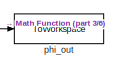
[diagram: root canvas - part 1/6, top left region]
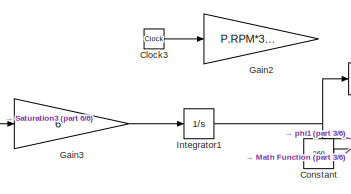
[diagram: root canvas - part 2/6, top left region]
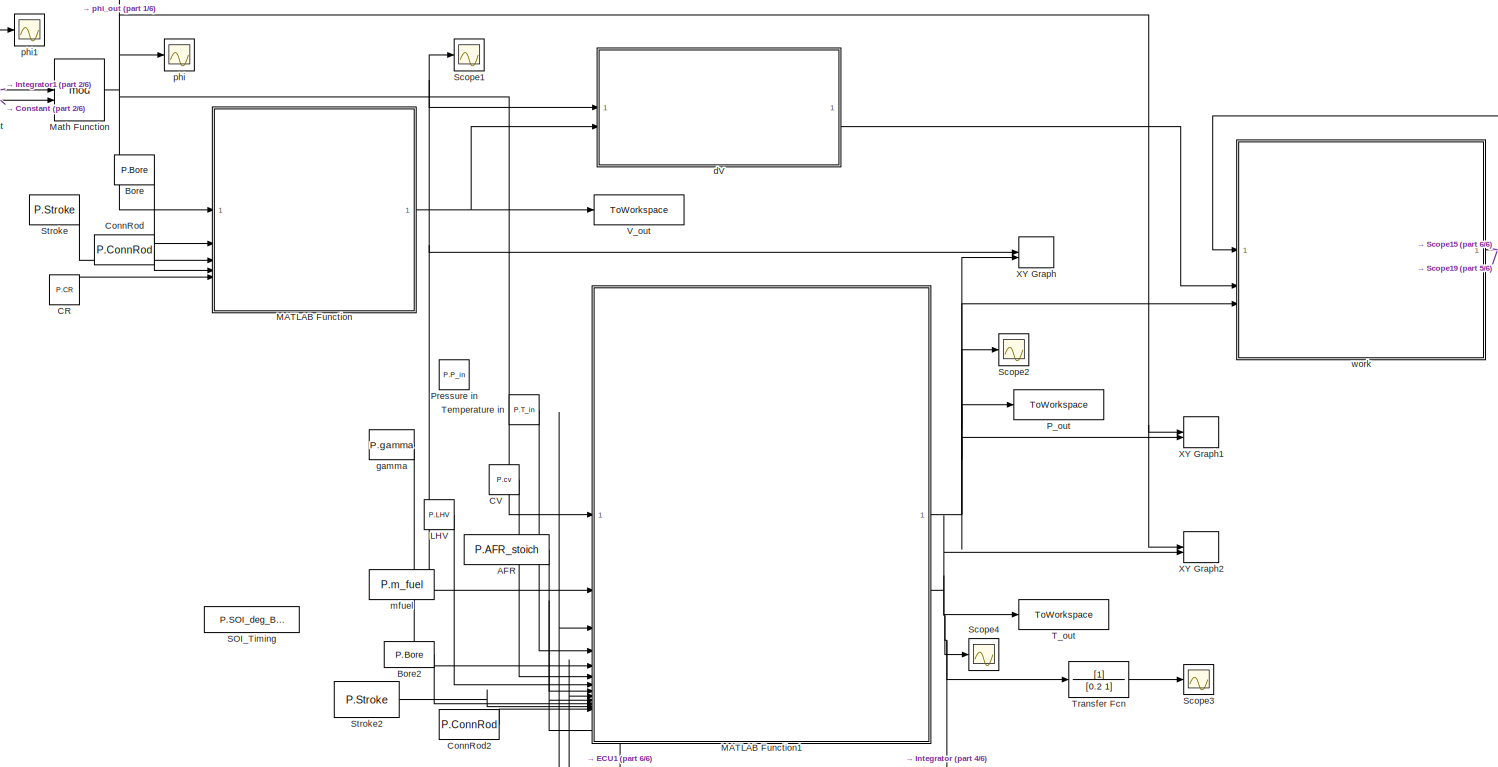
[diagram: root canvas - part 3/6, top center region]
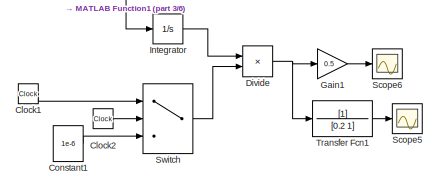
[diagram: root canvas - part 4/6, middle right region]
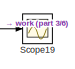
[diagram: root canvas - part 5/6, middle right region]
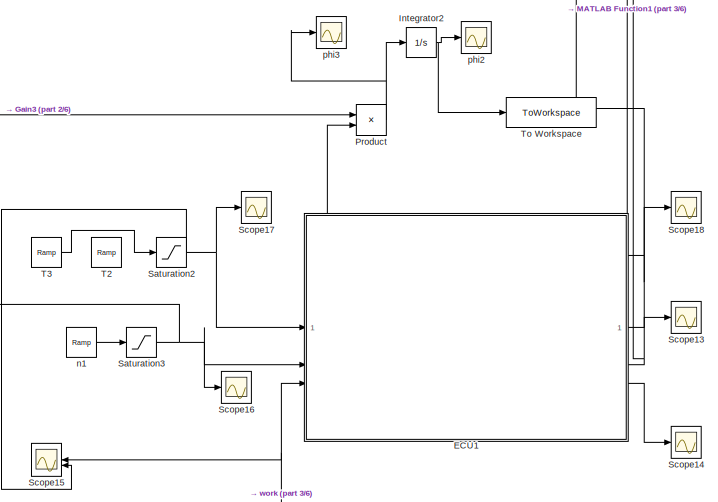
[diagram: root canvas - part 6/6, bottom center region]
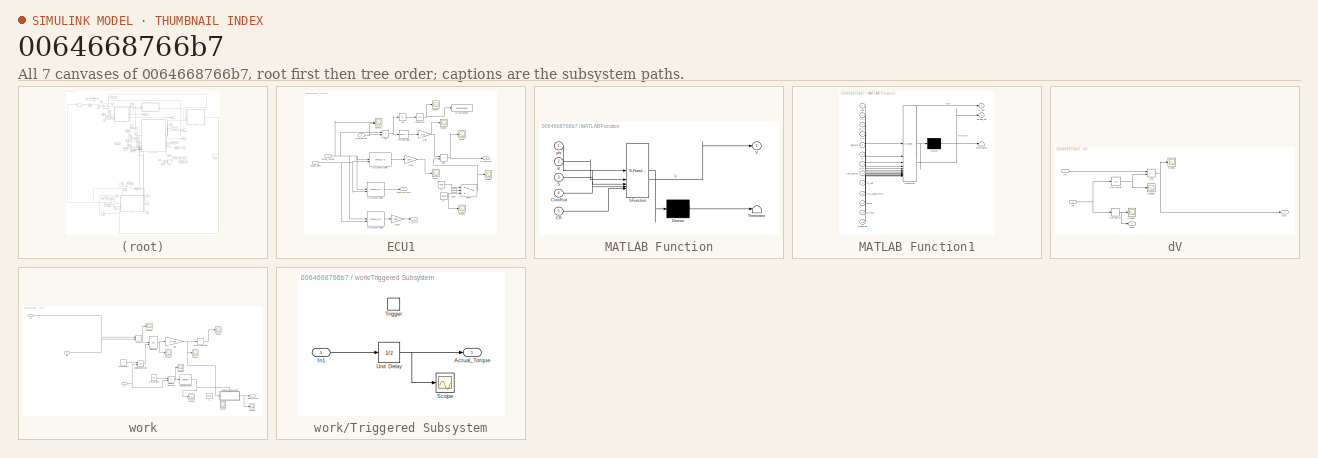
[diagram: thumbnail index - all 7 canvases of the model, root first then tree order]
MODEL slx_0064668766b7
KIND model
CONFIG AbsTol = auto
CONFIG EnableMultiTasking = off
CONFIG FixedStep = 1e-4
CONFIG MaxStep = auto
CONFIG MinStep = auto
CONFIG RelTol = 1e-3
CONFIG SampleTimeConstraint = Unconstrained
CONFIG SolverName = ode4
CONFIG StartTime = 0.0
CONFIG StopTime = 10
BLOCK [Constant] AFR
  Value = P.AFR_stoich
BLOCK [Constant] Bore
  Value = P.Bore
BLOCK [Constant] Bore2
  Value = P.Bore
BLOCK [Constant] CR
  Value = P.CR
BLOCK [Constant] CV
  Value = P.cv
BLOCK [Clock] Clock1
BLOCK [Clock] Clock2
BLOCK [Clock] Clock3
BLOCK [Constant] ConnRod
  Value = P.ConnRod
BLOCK [Constant] ConnRod2
  Value = P.ConnRod
BLOCK [Constant] Constant
  Value = 360
BLOCK [Constant] Constant1
  Value = 1e-6
BLOCK [Product] Divide
  Inputs = */
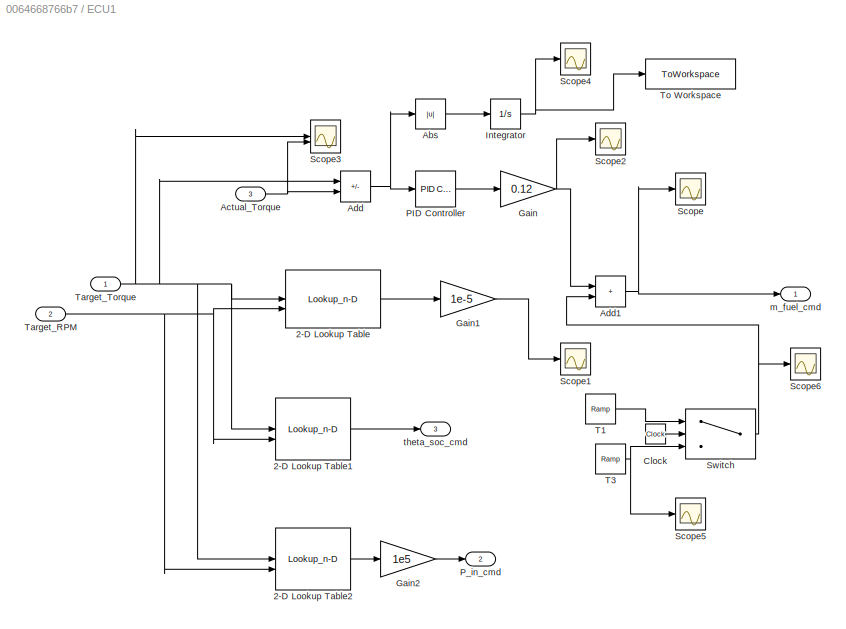
BLOCK [SubSystem] ECU1
BLOCK [Lookup_n-D] ECU1/2-D Lookup Table
  BreakpointsForDimension1 = [40 150 300 450]
  BreakpointsForDimension2 = [360;1000;1800]
  InputPortMap = u0,u1
  InternalRulePriority = Speed
  RndMeth = Simplest
  Table = [2.3 2.4 2.5;7.93 8.05 8.15;16.11 16.22 16.33;24.7 24.8 24.9]
BLOCK [Lookup_n-D] ECU1/2-D Lookup Table1
  BreakpointsForDimension1 = [40 150 300 450]
  BreakpointsForDimension2 = [360;1000;1800]
  InputPortMap = u0,u1
  InternalRulePriority = Speed
  RndMeth = Simplest
  Table = [10 10 10;10 10 10;10 10 10;10 10 10]
BLOCK [Lookup_n-D] ECU1/2-D Lookup Table2
  BreakpointsForDimension1 = [40 150 300 450]
  BreakpointsForDimension2 = [360;1000;1800]
  InputPortMap = u0,u1
  InternalRulePriority = Speed
  RndMeth = Simplest
  Table = [1.2 2.3 2.3;1.2 2.3 2.3;1.2 2.3 2.3;1.7 1.8 2.4]
BLOCK [Abs] ECU1/Abs
  SaturateOnIntegerOverflow = off
BLOCK [Inport] ECU1/Actual_Torque
  Port = 3
BLOCK [Sum] ECU1/Add
  IconShape = rectangular
  Inputs = +-
BLOCK [Sum] ECU1/Add1
  IconShape = rectangular
BLOCK [Clock] ECU1/Clock
BLOCK [Gain] ECU1/Gain
  Gain = 0.12
BLOCK [Gain] ECU1/Gain1
  Gain = 1e-5
BLOCK [Gain] ECU1/Gain2
  Gain = 1e5
BLOCK [Integrator] ECU1/Integrator
BLOCK [Reference] ECU1/PID Controller  REF=slpidlib/PID Controller
  SourceBlock = slpidlib/PID Controller
  SourceType = PID 1dof
BLOCK [Outport] ECU1/P_in_cmd
  Port = 2
BLOCK [Scope] ECU1/Scope
  Floating = off
  NumInputPorts = 1
  ScopeSpecificationString = Simulink.scopes.TimeScopeBlockCfg('CurrentConfiguration', extmgr.ConfigurationSet(extmgr.Configuration('Core','General UI',true),extmgr.Configuration('Core','Source UI',true),extmgr.Configuration('Sources','WiredSimulink',true,'DataLoggingVariableName','ScopeData8'),extmgr.Configuration('Visuals','Time Domain',true,'SerializedDisplays',{struct('MinYLimReal','0.00001','MaxYLimReal','0.00029','YLabe...<+1483ch>
BLOCK [Scope] ECU1/Scope1
  Floating = off
  NumInputPorts = 1
  ScopeSpecificationString = Simulink.scopes.TimeScopeBlockCfg('CurrentConfiguration', extmgr.ConfigurationSet(extmgr.Configuration('Core','General UI',true),extmgr.Configuration('Core','Source UI',true),extmgr.Configuration('Sources','WiredSimulink',true,'DataLoggingVariableName','ScopeData9'),extmgr.Configuration('Visuals','Time Domain',true,'SerializedDisplays',{struct('MinYLimReal','-0.00001','MaxYLimReal','0.00028','YLab...<+1812ch>
BLOCK [Scope] ECU1/Scope2
  Floating = off
  NumInputPorts = 1
  ScopeSpecificationString = Simulink.scopes.TimeScopeBlockCfg('CurrentConfiguration', extmgr.ConfigurationSet(extmgr.Configuration('Core','General UI',true),extmgr.Configuration('Core','Source UI',true),extmgr.Configuration('Sources','WiredSimulink',true,'DataLoggingVariableName','ScopeData10'),extmgr.Configuration('Visuals','Time Domain',true,'SerializedDisplays',{struct('MinYLimReal','-0.000001','MaxYLimReal','0.000013','Y...<+1848ch>
BLOCK [Scope] ECU1/Scope3
  Floating = off
  NumInputPorts = 2
  ScopeSpecificationString = Simulink.scopes.TimeScopeBlockCfg('CurrentConfiguration', extmgr.ConfigurationSet(extmgr.Configuration('Core','General UI',true),extmgr.Configuration('Core','Source UI',true),extmgr.Configuration('Sources','WiredSimulink',true,'DataLoggingVariableName','ScopeData10'),extmgr.Configuration('Visuals','Time Domain',true,'SerializedDisplays',{struct('MinYLimReal','224.44901','MaxYLimReal','244.58825','...<+1570ch>
BLOCK [Scope] ECU1/Scope4
  Floating = off
  NumInputPorts = 1
  ScopeSpecificationString = Simulink.scopes.TimeScopeBlockCfg('CurrentConfiguration', extmgr.ConfigurationSet(extmgr.Configuration('Core','General UI',true),extmgr.Configuration('Core','Source UI',true),extmgr.Configuration('Sources','WiredSimulink',true,'DataLoggingVariableName','ScopeData3'),extmgr.Configuration('Visuals','Time Domain',true,'SerializedDisplays',{struct('MinYLimReal','-3.24307','MaxYLimReal','29.1876','YLab...<+1483ch>
BLOCK [Scope] ECU1/Scope5
  Floating = off
  NumInputPorts = 1
  ScopeSpecificationString = Simulink.scopes.TimeScopeBlockCfg('CurrentConfiguration', extmgr.ConfigurationSet(extmgr.Configuration('Core','General UI',true),extmgr.Configuration('Core','Source UI',true),extmgr.Configuration('Sources','WiredSimulink',true,'DataLoggingVariableName','ScopeData1'),extmgr.Configuration('Visuals','Time Domain',true,'SerializedDisplays',{struct('MinYLimReal','-0.00001','MaxYLimReal','0.00028','YLab...<+1783ch>
BLOCK [Scope] ECU1/Scope6
  Floating = off
  NumInputPorts = 1
  ScopeSpecificationString = Simulink.scopes.TimeScopeBlockCfg('CurrentConfiguration', extmgr.ConfigurationSet(extmgr.Configuration('Core','General UI',true),extmgr.Configuration('Core','Source UI',true),extmgr.Configuration('Sources','WiredSimulink',true,'DataLoggingVariableName','ScopeData2'),extmgr.Configuration('Visuals','Time Domain',true,'SerializedDisplays',{struct('MinYLimReal','-0.00001','MaxYLimReal','0.00028','YLab...<+1787ch>
BLOCK [Switch] ECU1/Switch
  Criteria = u2 > Threshold
  InputSameDT = off
  SaturateOnIntegerOverflow = off
  Threshold = 5
BLOCK [Reference] ECU1/T1  REF=simulink/Sources/Ramp
  SourceBlock = simulink/Sources/Ramp
  SourceType = Ramp
BLOCK [Reference] ECU1/T3  REF=simulink/Sources/Ramp
  SourceBlock = simulink/Sources/Ramp
  SourceType = Ramp
BLOCK [Inport] ECU1/Target_RPM
  Port = 2
BLOCK [Inport] ECU1/Target_Torque
BLOCK [ToWorkspace] ECU1/To Workspace
  FixptAsFi = on
  MaxDataPoints = inf
  SampleTime = -1
  VariableName = error
BLOCK [Outport] ECU1/m_fuel_cmd
BLOCK [Outport] ECU1/theta_soc_cmd
  Port = 3
BLOCK [Gain] Gain1
  Gain = 0.5
BLOCK [Gain] Gain2
  Gain = P.RPM*360/60
BLOCK [Gain] Gain3
  Gain = 6
BLOCK [Integrator] Integrator
BLOCK [Integrator] Integrator1
BLOCK [Integrator] Integrator2
BLOCK [Constant] LHV
  Value = P.LHV
BLOCK [SubSystem] MATLAB Function
  ErrorFcn = Stateflow.Translate.translate
  PermitHierarchicalResolution = ExplicitOnly
  SFBlockType = MATLAB Function
  TreatAsAtomicUnit = on
BLOCK [Demux] MATLAB Function/ Demux 
  Outputs = 1
BLOCK [S-Function] MATLAB Function/ SFunction 
  EnableBusSupport = on
  FunctionName = sf_sfun
  PortCounts = [5 2]
  SFcnIsStateOwnerBlock = off
  SFunctionDeploymentMode = off
  Tag = Stateflow S-Function 2
BLOCK [Terminator] MATLAB Function/ Terminator 
BLOCK [Inport] MATLAB Function/B
  Port = 2
BLOCK [Inport] MATLAB Function/CR
  Port = 5
BLOCK [Inport] MATLAB Function/ConnRod
  Port = 4
BLOCK [Inport] MATLAB Function/S
  Port = 3
BLOCK [Outport] MATLAB Function/V
  VectorParamsAs1DForOutWhenUnconnected = off
BLOCK [Inport] MATLAB Function/phi
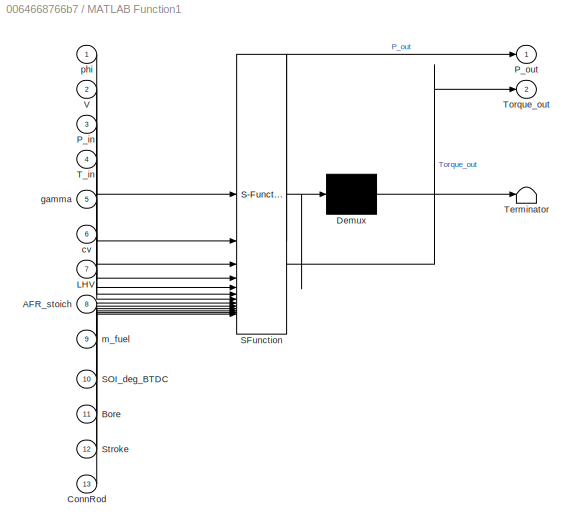
BLOCK [SubSystem] MATLAB Function1
  ErrorFcn = Stateflow.Translate.translate
  PermitHierarchicalResolution = ExplicitOnly
  SFBlockType = MATLAB Function
  TreatAsAtomicUnit = on
BLOCK [Demux] MATLAB Function1/ Demux 
  Outputs = 1
BLOCK [S-Function] MATLAB Function1/ SFunction 
  EnableBusSupport = on
  FunctionName = sf_sfun
  PortCounts = [13 3]
  SFcnIsStateOwnerBlock = off
  SFunctionDeploymentMode = off
  Tag = Stateflow S-Function 1
BLOCK [Terminator] MATLAB Function1/ Terminator 
BLOCK [Inport] MATLAB Function1/AFR_stoich
  Port = 8
BLOCK [Inport] MATLAB Function1/Bore
  Port = 11
BLOCK [Inport] MATLAB Function1/ConnRod
  Port = 13
BLOCK [Inport] MATLAB Function1/LHV
  Port = 7
BLOCK [Inport] MATLAB Function1/P_in
  Port = 3
BLOCK [Outport] MATLAB Function1/P_out
  VectorParamsAs1DForOutWhenUnconnected = off
BLOCK [Inport] MATLAB Function1/SOI_deg_BTDC
  Port = 10
BLOCK [Inport] MATLAB Function1/Stroke
  Port = 12
BLOCK [Inport] MATLAB Function1/T_in
  Port = 4
BLOCK [Outport] MATLAB Function1/Torque_out
  Port = 2
BLOCK [Inport] MATLAB Function1/V
  Port = 2
BLOCK [Inport] MATLAB Function1/cv
  Port = 6
BLOCK [Inport] MATLAB Function1/gamma
  Port = 5
BLOCK [Inport] MATLAB Function1/m_fuel
  Port = 9
BLOCK [Inport] MATLAB Function1/phi
BLOCK [Math] Math Function
  Operator = mod
BLOCK [ToWorkspace] P_out
  FixptAsFi = on
  MaxDataPoints = inf
  SampleTime = -1
  VariableName = P_out
BLOCK [Constant] Pressure in
  Value = P.P_in
BLOCK [Product] Product
BLOCK [Constant] SOI_Timing
  Value = P.SOI_deg_BTDC
BLOCK [Saturate] Saturation2
  LowerLimit = 0
  UpperLimit = 450
BLOCK [Saturate] Saturation3
  LowerLimit = 0
  UpperLimit = 1800
BLOCK [Scope] Scope1
  Floating = off
  NumInputPorts = 1
  ScopeSpecificationString = Simulink.scopes.TimeScopeBlockCfg('CurrentConfiguration', extmgr.ConfigurationSet(extmgr.Configuration('Core','General UI',true),extmgr.Configuration('Core','Source UI',true),extmgr.Configuration('Sources','WiredSimulink',true,'DataLoggingVariableName','ScopeData1'),extmgr.Configuration('Visuals','Time Domain',true,'SerializedDisplays',{struct('MinYLimReal','-0.00003','MaxYLimReal','0.00289','YLab...<+1748ch>
BLOCK [Scope] Scope13
  Floating = off
  NumInputPorts = 1
  ScopeSpecificationString = Simulink.scopes.TimeScopeBlockCfg('CurrentConfiguration', extmgr.ConfigurationSet(extmgr.Configuration('Core','General UI',true),extmgr.Configuration('Core','Source UI',true),extmgr.Configuration('Sources','WiredSimulink',true,'DataLoggingVariableName','ScopeData1'),extmgr.Configuration('Visuals','Time Domain',true,'SerializedDisplays',{struct('MinYLimReal','52406.61223','MaxYLimReal','75890.48992...<+1935ch>
BLOCK [Scope] Scope14
  Floating = off
  NumInputPorts = 1
  ScopeSpecificationString = Simulink.scopes.TimeScopeBlockCfg('CurrentConfiguration', extmgr.ConfigurationSet(extmgr.Configuration('Core','General UI',true),extmgr.Configuration('Core','Source UI',true),extmgr.Configuration('Sources','WiredSimulink',true,'DataLoggingVariableName','ScopeData2'),extmgr.Configuration('Visuals','Time Domain',true,'SerializedDisplays',{struct('MinYLimReal','79.46265','MaxYLimReal','81.17082','YLa...<+1579ch>
BLOCK [Scope] Scope15
  Floating = off
  NameLocation = top
  NumInputPorts = 2
  ScopeSpecificationString = Simulink.scopes.TimeScopeBlockCfg('CurrentConfiguration', extmgr.ConfigurationSet(extmgr.Configuration('Core','General UI',true),extmgr.Configuration('Core','Source UI',true),extmgr.Configuration('Sources','WiredSimulink',true,'DataLoggingVariableName','ScopeData3'),extmgr.Configuration('Visuals','Time Domain',true,'SerializedDisplays',{struct('MinYLimReal','-5.85382','MaxYLimReal','52.68442','YLa...<+1585ch>
BLOCK [Scope] Scope16
  Floating = off
  NumInputPorts = 1
  ScopeSpecificationString = Simulink.scopes.TimeScopeBlockCfg('CurrentConfiguration', extmgr.ConfigurationSet(extmgr.Configuration('Core','General UI',true),extmgr.Configuration('Core','Source UI',true),extmgr.Configuration('Sources','WiredSimulink',true,'DataLoggingVariableName','ScopeData4'),extmgr.Configuration('Visuals','Time Domain',true,'SerializedDisplays',{struct('MinYLimReal','359.4006','MaxYLimReal','365.3946','YLa...<+1549ch>
BLOCK [Scope] Scope17
  Floating = off
  NumInputPorts = 1
  ScopeSpecificationString = Simulink.scopes.TimeScopeBlockCfg('CurrentConfiguration', extmgr.ConfigurationSet(extmgr.Configuration('Core','General UI',true),extmgr.Configuration('Core','Source UI',true),extmgr.Configuration('Sources','WiredSimulink',true,'DataLoggingVariableName','ScopeData5'),extmgr.Configuration('Visuals','Time Domain',true,'SerializedDisplays',{struct('MinYLimReal','39.82934','MaxYLimReal','41.53596','YLa...<+1580ch>
BLOCK [Scope] Scope18
  Floating = off
  NumInputPorts = 1
  ScopeSpecificationString = Simulink.scopes.TimeScopeBlockCfg('CurrentConfiguration', extmgr.ConfigurationSet(extmgr.Configuration('Core','General UI',true),extmgr.Configuration('Core','Source UI',true),extmgr.Configuration('Sources','WiredSimulink',true,'DataLoggingVariableName','ScopeData6'),extmgr.Configuration('Visuals','Time Domain',true,'SerializedDisplays',{struct('MinYLimReal','0.0000297','MaxYLimReal','0.000034','YL...<+1579ch>
BLOCK [Scope] Scope19
  Floating = off
  NumInputPorts = 1
  ScopeSpecificationString = Simulink.scopes.TimeScopeBlockCfg('CurrentConfiguration', extmgr.ConfigurationSet(extmgr.Configuration('Core','General UI',true),extmgr.Configuration('Core','Source UI',true),extmgr.Configuration('Sources','WiredSimulink',true,'DataLoggingVariableName','ScopeData9'),extmgr.Configuration('Visuals','Time Domain',true,'SerializedDisplays',{struct('MinYLimReal','-56.48928','MaxYLimReal','508.40353','Y...<+1917ch>
BLOCK [Scope] Scope2
  Floating = off
  NumInputPorts = 1
  ScopeSpecificationString = Simulink.scopes.TimeScopeBlockCfg('CurrentConfiguration', extmgr.ConfigurationSet(extmgr.Configuration('Core','General UI',true),extmgr.Configuration('Core','Source UI',true),extmgr.Configuration('Sources','WiredSimulink',true,'DataLoggingVariableName','ScopeData2'),extmgr.Configuration('Visuals','Time Domain',true,'SerializedDisplays',{struct('MinYLimReal','-2702613.96524','MaxYLimReal','25983525...<+1915ch>
BLOCK [Scope] Scope3
  Floating = off
  NumInputPorts = 1
  ScopeSpecificationString = Simulink.scopes.TimeScopeBlockCfg('CurrentConfiguration', extmgr.ConfigurationSet(extmgr.Configuration('Core','General UI',true),extmgr.Configuration('Core','Source UI',true),extmgr.Configuration('Sources','WiredSimulink',true,'DataLoggingVariableName','ScopeData1'),extmgr.Configuration('Visuals','Time Domain',true,'SerializedDisplays',{struct('MinYLimReal','-175.58245','MaxYLimReal','1073.90703',...<+1934ch>
BLOCK [Scope] Scope4
  Floating = off
  NumInputPorts = 1
  ScopeSpecificationString = Simulink.scopes.TimeScopeBlockCfg('CurrentConfiguration', extmgr.ConfigurationSet(extmgr.Configuration('Core','General UI',true),extmgr.Configuration('Core','Source UI',true),extmgr.Configuration('Sources','WiredSimulink',true,'DataLoggingVariableName','ScopeData1'),extmgr.Configuration('Visuals','Time Domain',true,'SerializedDisplays',{struct('MinYLimReal','-1861.81328','MaxYLimReal','2570.33336'...<+1581ch>
BLOCK [Scope] Scope5
  Floating = off
  NumInputPorts = 1
  ScopeSpecificationString = Simulink.scopes.TimeScopeBlockCfg('CurrentConfiguration', extmgr.ConfigurationSet(extmgr.Configuration('Core','General UI',true),extmgr.Configuration('Core','Source UI',true),extmgr.Configuration('Sources','WiredSimulink',true,'DataLoggingVariableName','ScopeData1'),extmgr.Configuration('Visuals','Time Domain',true,'SerializedDisplays',{struct('MinYLimReal','-60.9312','MaxYLimReal','329.72063','YL...<+1931ch>
BLOCK [Scope] Scope6
  Floating = off
  NumInputPorts = 1
  ScopeSpecificationString = Simulink.scopes.TimeScopeBlockCfg('CurrentConfiguration', extmgr.ConfigurationSet(extmgr.Configuration('Core','General UI',true),extmgr.Configuration('Core','Source UI',true),extmgr.Configuration('Sources','WiredSimulink',true,'DataLoggingVariableName','ScopeData2'),extmgr.Configuration('Visuals','Time Domain',true,'SerializedDisplays',{struct('MinYLimReal','-361.32688','MaxYLimReal','553.01779','...<+1921ch>
BLOCK [Constant] Stroke
  Value = P.Stroke
BLOCK [Constant] Stroke2
  Value = P.Stroke
BLOCK [Switch] Switch
  Criteria = u2 > Threshold
  InputSameDT = off
  SaturateOnIntegerOverflow = off
  Threshold = 1e-6
BLOCK [Reference] T2  REF=simulink/Sources/Ramp
  SourceBlock = simulink/Sources/Ramp
  SourceType = Ramp
BLOCK [Reference] T3  REF=simulink/Sources/Ramp
  SourceBlock = simulink/Sources/Ramp
  SourceType = Ramp
BLOCK [ToWorkspace] T_out
  FixptAsFi = on
  MaxDataPoints = inf
  SampleTime = -1
  VariableName = T_out
BLOCK [Constant] Temperature in
  Value = P.T_in
BLOCK [ToWorkspace] To Workspace
  FixptAsFi = on
  MaxDataPoints = inf
  SampleTime = -1
  VariableName = J_fuel
BLOCK [TransferFcn] Transfer Fcn
  Denominator = [0.2 1]
BLOCK [TransferFcn] Transfer Fcn1
  Denominator = [0.2 1]
BLOCK [ToWorkspace] V_out
  FixptAsFi = on
  MaxDataPoints = inf
  SampleTime = -1
  VariableName = V_out
BLOCK [Record] XY Graph
  CompatibilityTag = XY
  FileSettingsInternal = {"entries":[{"content":{"excelSettings":{"content":{},"type":"Streamout.ExcelSettings"}},"type":"Streamout.FileSettingStorage","uuid":""}],"packageUris":["http:\/\/schema.mathworks.com\/mf0\/streamout_blocks\/R2020a"],"version":"1.0"}  <repeated x3 — deduplicated; at blocks: XY Graph, XY Graph1, XY Graph2>
  Layout = [1 1]
  SignalsInternal = {"entries":[{"content":{"signals":[{"content":{"blockPath":[],"dimensions":[1],"domain":"","lineColor":"#a2142f","lineWidth":2,"port":1,"sid":[""],"signalID":1,"signalName":"MATLAB Function"},"type":"RecordBlkView.Signal","uuid":""},{"content":{"blockPath":[],"dimensions":[1],"domain":"","lineColor":"#139fff","lineWidth":2,"port":2,"sid":[""],"signalID":2,"signalName":"MATLAB Function1:1"},"type":...<+179ch>
  VisualizationBindings = {"xyplotplugin":{"info":[{"series":[],"subplotID":1}]}}
BLOCK [Record] XY Graph1
  CompatibilityTag = XY
  Layout = [1 1]
  SignalsInternal = {"entries":[{"content":{"signals":[{"content":{"blockPath":[],"dimensions":[1,1],"domain":"","lineColor":"#fe330a","lineWidth":2,"port":1,"sid":[""],"signalID":1,"signalName":"Math\nFunction"},"type":"RecordBlkView.Signal","uuid":""},{"content":{"blockPath":[],"dimensions":[1],"domain":"","lineColor":"#22b573","lineWidth":2,"port":2,"sid":[""],"signalID":2,"signalName":"MATLAB Function1:1"},"type"...<+180ch>
  VisualizationBindings = {"xyplotplugin":{"info":[{"series":[],"subplotID":1}]}}
BLOCK [Record] XY Graph2
  CompatibilityTag = XY
  Layout = [1 1]
  SignalsInternal = {"entries":[{"content":{"signals":[{"content":{"blockPath":[],"dimensions":[1,1],"domain":"","lineColor":"#0072bd","lineWidth":2,"port":1,"sid":[""],"signalID":1,"signalName":"Math\nFunction"},"type":"RecordBlkView.Signal","uuid":""},{"content":{"blockPath":[],"dimensions":[1],"domain":"","lineColor":"#139fff","plots":[ 1 ],"port":2,"sid":[""],"signalID":2,"signalName":"MATLAB Function1:2"},"type"...<+180ch>
  VisualizationBindings = {"xyplotplugin":{"info":[{"series":[{"bindingParametersList":[{"parameter":"Y-Axis","signalID":2,"signalName":"MATLAB Function1:2"}],"seriesID":0}],"subplotID":1}]}}
BLOCK [SubSystem] dV
BLOCK [Sum] dV/Add
  IconShape = rectangular
  Inputs = +-
BLOCK [Derivative] dV/Derivative
BLOCK [Inport] dV/In1
BLOCK [Inport] dV/In2
  Port = 2
BLOCK [Outport] dV/Out1
BLOCK [Outport] dV/Out2
  Port = 2
BLOCK [Scope] dV/Scope1
  Floating = off
  NumInputPorts = 1
  ScopeSpecificationString = Simulink.scopes.TimeScopeBlockCfg('CurrentConfiguration', extmgr.ConfigurationSet(extmgr.Configuration('Core','General UI',true),extmgr.Configuration('Core','Source UI',true),extmgr.Configuration('Sources','WiredSimulink',true,'DataLoggingVariableName','ScopeData3'),extmgr.Configuration('Visuals','Time Domain',true,'SerializedDisplays',{struct('MinYLimReal','-0.28412','MaxYLimReal','0.28412','YLab...<+1744ch>
BLOCK [Scope] dV/Scope3
  Floating = off
  NumInputPorts = 1
  ScopeSpecificationString = Simulink.scopes.TimeScopeBlockCfg('CurrentConfiguration', extmgr.ConfigurationSet(extmgr.Configuration('Core','General UI',true),extmgr.Configuration('Core','Source UI',true),extmgr.Configuration('Sources','WiredSimulink',true,'DataLoggingVariableName','ScopeData1'),extmgr.Configuration('Visuals','Time Domain',true,'SerializedDisplays',{struct('MinYLimReal','-0.0000028','MaxYLimReal','0.0000028','...<+1767ch>
BLOCK [Scope] dV/Scope5
  Floating = off
  NumInputPorts = 1
  ScopeSpecificationString = Simulink.scopes.TimeScopeBlockCfg('CurrentConfiguration', extmgr.ConfigurationSet(extmgr.Configuration('Core','General UI',true),extmgr.Configuration('Core','Source UI',true),extmgr.Configuration('Sources','WiredSimulink',true,'DataLoggingVariableName','ScopeData2'),extmgr.Configuration('Visuals','Time Domain',true,'SerializedDisplays',{struct('MinYLimReal','-0.00003','MaxYLimReal','0.00289','YLab...<+1744ch>
BLOCK [UnitDelay] dV/Unit Delay
  HasFrameUpgradeWarning = on
  InitialCondition = 2.6e-3
  SampleTime = -1
BLOCK [Constant] gamma
  Value = P.gamma
BLOCK [Constant] mfuel
  Value = P.m_fuel
BLOCK [Reference] n1  REF=simulink/Sources/Ramp
  SourceBlock = simulink/Sources/Ramp
  SourceType = Ramp
BLOCK [Scope] phi
  Floating = off
  NumInputPorts = 1
  ScopeSpecificationString = Simulink.scopes.TimeScopeBlockCfg('CurrentConfiguration', extmgr.ConfigurationSet(extmgr.Configuration('Core','General UI',true),extmgr.Configuration('Core','Source UI',true),extmgr.Configuration('Sources','WiredSimulink',true),extmgr.Configuration('Visuals','Time Domain',true,'SerializedDisplays',{struct('MinYLimReal','-44.99719','MaxYLimReal','404.97473','YLabelReal','','MinYLimMag','0.00000','M...<+1463ch>
BLOCK [Scope] phi1
  Floating = off
  NumInputPorts = 1
  ScopeSpecificationString = Simulink.scopes.TimeScopeBlockCfg('CurrentConfiguration', extmgr.ConfigurationSet(extmgr.Configuration('Core','General UI',true),extmgr.Configuration('Core','Source UI',true),extmgr.Configuration('Sources','WiredSimulink',true,'DataLoggingVariableName','ScopeData12'),extmgr.Configuration('Visuals','Time Domain',true,'SerializedDisplays',{struct('MinYLimReal','-382.5','MaxYLimReal','3442.5','YLabel...<+1485ch>
BLOCK [Scope] phi2
  Floating = off
  NumInputPorts = 1
  ScopeSpecificationString = Simulink.scopes.TimeScopeBlockCfg('CurrentConfiguration', extmgr.ConfigurationSet(extmgr.Configuration('Core','General UI',true),extmgr.Configuration('Core','Source UI',true),extmgr.Configuration('Sources','WiredSimulink',true,'DataLoggingVariableName','ScopeData1'),extmgr.Configuration('Visuals','Time Domain',true,'SerializedDisplays',{struct('MinYLimReal','-0.18673','MaxYLimReal','1.68059','YLab...<+1490ch>
BLOCK [Scope] phi3
  Floating = off
  NumInputPorts = 1
  ScopeSpecificationString = Simulink.scopes.TimeScopeBlockCfg('CurrentConfiguration', extmgr.ConfigurationSet(extmgr.Configuration('Core','General UI',true),extmgr.Configuration('Core','Source UI',true),extmgr.Configuration('Sources','WiredSimulink',true,'DataLoggingVariableName','ScopeData2'),extmgr.Configuration('Visuals','Time Domain',true,'SerializedDisplays',{struct('MinYLimReal','-0.03896','MaxYLimReal','0.43417','YLab...<+1486ch>
BLOCK [ToWorkspace] phi_out
  FixptAsFi = on
  MaxDataPoints = inf
  SampleTime = -1
  VariableName = phi_out
BLOCK [SubSystem] work
BLOCK [Outport] work/Actual_Torque
BLOCK [Reference] work/Detect Rise Positive  REF=simulink/Logic and Bit
Operations/Detect Rise
Positive
  SourceBlock = simulink/Logic and Bit\nOperations/Detect Rise\nPositive
  SourceType = Detect Rise Positive
BLOCK [Gain] work/Gain
  Gain = 1/(4*pi)
BLOCK [Inport] work/In1
BLOCK [Inport] work/In2
  Port = 2
BLOCK [Inport] work/In3
  Port = 3
BLOCK [Integrator] work/Integrator
  ExternalReset = rising
BLOCK [Constant] work/Pressure in1
BLOCK [Constant] work/Pressure in2
  Value = 282
BLOCK [Product] work/Product
BLOCK [RelationalOperator] work/Relational Operator
  InputSameDT = off
  Operator = <=
  OutDataTypeStr = boolean
  RndMeth = Simplest
BLOCK [RelationalOperator] work/Relational Operator1
  InputSameDT = off
  Operator = <=
  OutDataTypeStr = boolean
  RndMeth = Simplest
BLOCK [Scope] work/Scope
  Floating = off
  NumInputPorts = 1
  ScopeSpecificationString = Simulink.scopes.TimeScopeBlockCfg('CurrentConfiguration', extmgr.ConfigurationSet(extmgr.Configuration('Core','General UI',true),extmgr.Configuration('Core','Source UI',true),extmgr.Configuration('Sources','WiredSimulink',true,'DataLoggingVariableName','ScopeData11'),extmgr.Configuration('Visuals','Time Domain',true,'SerializedDisplays',{struct('MinYLimReal','-35.2381','MaxYLimReal','66.03116','YL...<+1468ch>
BLOCK [Scope] work/Scope1
  Floating = off
  NumInputPorts = 1
  ScopeSpecificationString = Simulink.scopes.TimeScopeBlockCfg('CurrentConfiguration', extmgr.ConfigurationSet(extmgr.Configuration('Core','General UI',true),extmgr.Configuration('Core','Source UI',true),extmgr.Configuration('Sources','WiredSimulink',true,'DataLoggingVariableName','ScopeData1'),extmgr.Configuration('Visuals','Time Domain',true,'SerializedDisplays',{struct('MinYLimReal','-156.84415','MaxYLimReal','86.85701','Y...<+1867ch>
BLOCK [Scope] work/Scope2
  Floating = off
  NumInputPorts = 1
  ScopeSpecificationString = Simulink.scopes.TimeScopeBlockCfg('CurrentConfiguration', extmgr.ConfigurationSet(extmgr.Configuration('Core','General UI',true),extmgr.Configuration('Core','Source UI',true),extmgr.Configuration('Sources','WiredSimulink',true,'DataLoggingVariableName','ScopeData13'),extmgr.Configuration('Visuals','Time Domain',true,'SerializedDisplays',{struct('MinYLimReal','-56.02173','MaxYLimReal','504.19554','...<+1919ch>
BLOCK [Scope] work/Scope3
  Floating = off
  NumInputPorts = 1
  ScopeSpecificationString = Simulink.scopes.TimeScopeBlockCfg('CurrentConfiguration', extmgr.ConfigurationSet(extmgr.Configuration('Core','General UI',true),extmgr.Configuration('Core','Source UI',true),extmgr.Configuration('Sources','WiredSimulink',true,'DataLoggingVariableName','ScopeData14'),extmgr.Configuration('Visuals','Time Domain',true,'SerializedDisplays',{struct('MinYLimReal','-0.125','MaxYLimReal','1.125','YLabelR...<+1747ch>
BLOCK [Scope] work/Scope4
  Floating = off
  NumInputPorts = 1
  ScopeSpecificationString = Simulink.scopes.TimeScopeBlockCfg('CurrentConfiguration', extmgr.ConfigurationSet(extmgr.Configuration('Core','General UI',true),extmgr.Configuration('Core','Source UI',true),extmgr.Configuration('Sources','WiredSimulink',true,'DataLoggingVariableName','ScopeData16'),extmgr.Configuration('Visuals','Time Domain',true,'SerializedDisplays',{struct('MinYLimReal','-49.04425','MaxYLimReal','441.39825','...<+1550ch>
BLOCK [Scope] work/Scope5
  Floating = off
  NumInputPorts = 1
  ScopeSpecificationString = Simulink.scopes.TimeScopeBlockCfg('CurrentConfiguration', extmgr.ConfigurationSet(extmgr.Configuration('Core','General UI',true),extmgr.Configuration('Core','Source UI',true),extmgr.Configuration('Sources','WiredSimulink',true,'DataLoggingVariableName','ScopeData17'),extmgr.Configuration('Visuals','Time Domain',true,'SerializedDisplays',{struct('MinYLimReal','-0.125','MaxYLimReal','1.125','YLabelR...<+1759ch>
BLOCK [Scope] work/Scope6
  Floating = off
  NumInputPorts = 1
  ScopeSpecificationString = Simulink.scopes.TimeScopeBlockCfg('CurrentConfiguration', extmgr.ConfigurationSet(extmgr.Configuration('Core','General UI',true),extmgr.Configuration('Core','Source UI',true),extmgr.Configuration('Sources','WiredSimulink',true,'DataLoggingVariableName','ScopeData3'),extmgr.Configuration('Visuals','Time Domain',true,'SerializedDisplays',{struct('MinYLimReal','-1080499.47993','MaxYLimReal','1409928....<+1831ch>
BLOCK [Scope] work/Scope7
  Floating = off
  NumInputPorts = 1
  ScopeSpecificationString = Simulink.scopes.TimeScopeBlockCfg('CurrentConfiguration', extmgr.ConfigurationSet(extmgr.Configuration('Core','General UI',true),extmgr.Configuration('Core','Source UI',true),extmgr.Configuration('Sources','WiredSimulink',true,'DataLoggingVariableName','ScopeData4'),extmgr.Configuration('Visuals','Time Domain',true,'SerializedDisplays',{struct('MinYLimReal','-2859.2273','MaxYLimReal','6311.89755',...<+1776ch>
BLOCK [Reference] work/T1  REF=simulink/Sources/Ramp
  SourceBlock = simulink/Sources/Ramp
  SourceType = Ramp
BLOCK [SubSystem] work/Triggered Subsystem
  TreatAsAtomicUnit = on
BLOCK [Outport] work/Triggered Subsystem/Actual_Torque
BLOCK [Inport] work/Triggered Subsystem/In1
BLOCK [Scope] work/Triggered Subsystem/Scope
  Floating = off
  NumInputPorts = 1
  ScopeSpecificationString = Simulink.scopes.TimeScopeBlockCfg('CurrentConfiguration', extmgr.ConfigurationSet(extmgr.Configuration('Core','General UI',true),extmgr.Configuration('Core','Source UI',true),extmgr.Configuration('Sources','WiredSimulink',true,'DataLoggingVariableName','ScopeData15'),extmgr.Configuration('Visuals','Time Domain',true,'SerializedDisplays',{struct('MinYLimReal','-7.54054','MaxYLimReal','67.8649','YLa...<+1459ch>
BLOCK [TriggerPort] work/Triggered Subsystem/Trigger
  StatesWhenEnabling = held
  VariantControl = (inherit)
BLOCK [UnitDelay] work/Triggered Subsystem/Unit Delay
  HasFrameUpgradeWarning = on
  SampleTime = -1
BLOCK [ZeroOrderHold] work/Zero-Order Hold
  SampleTime = round(60*10000/P.RPM)/10000
LINE AFR:1 -> MATLAB Function1:8
LINE Bore2:1 -> MATLAB Function1:11
LINE Bore:1 -> MATLAB Function:2
LINE CR:1 -> MATLAB Function:5
LINE CV:1 -> MATLAB Function1:6
LINE Clock1:1 -> Switch:1
LINE Clock2:1 -> Switch:2
LINE Clock3:1 -> Gain2:1
LINE ConnRod2:1 -> MATLAB Function1:13
LINE ConnRod:1 -> MATLAB Function:4
LINE Constant1:1 -> Switch:3
LINE Constant:1 -> Math Function:2
NET Divide:1 -> Gain1:1, Transfer Fcn1:1
LINE ECU1/2-D Lookup Table1:1 -> ECU1/theta_soc_cmd:1
LINE ECU1/2-D Lookup Table2:1 -> ECU1/Gain2:1
LINE ECU1/2-D Lookup Table:1 -> ECU1/Gain1:1
LINE ECU1/Abs:1 -> ECU1/Integrator:1
NET ECU1/Actual_Torque:1 -> ECU1/Add:2, ECU1/Scope3:2
NET ECU1/Add1:1 -> ECU1/Scope:1, ECU1/m_fuel_cmd:1
NET ECU1/Add:1 -> ECU1/Abs:1, ECU1/PID Controller:1
LINE ECU1/Clock:1 -> ECU1/Switch:2
LINE ECU1/Gain1:1 -> ECU1/Scope1:1
LINE ECU1/Gain2:1 -> ECU1/P_in_cmd:1
NET ECU1/Gain:1 -> ECU1/Add1:1, ECU1/Scope2:1
NET ECU1/Integrator:1 -> ECU1/Scope4:1, ECU1/To Workspace:1
LINE ECU1/PID Controller:1 -> ECU1/Gain:1
NET ECU1/Switch:1 -> ECU1/Add1:2, ECU1/Scope6:1
LINE ECU1/T1:1 -> ECU1/Switch:1
NET ECU1/T3:1 -> ECU1/Scope5:1, ECU1/Switch:3
NET ECU1/Target_RPM:1 -> ECU1/2-D Lookup Table1:2, ECU1/2-D Lookup Table2:2, ECU1/2-D Lookup Table:2
NET ECU1/Target_Torque:1 -> ECU1/2-D Lookup Table1:1, ECU1/2-D Lookup Table2:1, ECU1/2-D Lookup Table:1, ECU1/Add:1, ECU1/Scope3:1
NET ECU1:1 -> MATLAB Function1:9, Product:2, Scope18:1
NET ECU1:2 -> MATLAB Function1:3, Scope13:1
NET ECU1:3 -> MATLAB Function1:10, Scope14:1
LINE Gain1:1 -> Scope6:1
LINE Gain3:1 -> Integrator1:1
NET Integrator1:1 -> Math Function:1, phi1:1
NET Integrator2:1 -> To Workspace:1, phi2:1
LINE Integrator:1 -> Divide:1
LINE LHV:1 -> MATLAB Function1:7
NET MATLAB Function1:1 -> P_out:1, Scope2:1, XY Graph1:2, XY Graph:2, work:3
NET MATLAB Function1:2 -> Integrator:1, Scope4:1, T_out:1, Transfer Fcn:1, XY Graph2:2
NET MATLAB Function:1 -> MATLAB Function1:2, Scope1:1, V_out:1, XY Graph:1, dV:1, dV:2
NET Math Function:1 -> MATLAB Function1:1, MATLAB Function:1, XY Graph1:1, XY Graph2:1, phi:1, phi_out:1, work:1
NET Product:1 -> Integrator2:1, phi3:1
NET Saturation2:1 -> ECU1:1, Scope15:2, Scope17:1
NET Saturation3:1 -> ECU1:2, Gain3:1, Product:1, Scope16:1
LINE Stroke2:1 -> MATLAB Function1:12
LINE Stroke:1 -> MATLAB Function:3
LINE Switch:1 -> Divide:2
LINE T3:1 -> Saturation2:1
LINE Temperature in:1 -> MATLAB Function1:4
LINE Transfer Fcn1:1 -> Scope5:1
LINE Transfer Fcn:1 -> Scope3:1
NET dV/Add:1 -> dV/Out1:1, dV/Scope3:1
NET dV/Derivative:1 -> dV/Out2:1, dV/Scope1:1
LINE dV/In1:1 -> dV/Add:1
NET dV/In2:1 -> dV/Derivative:1, dV/Unit Delay:1
NET dV/Unit Delay:1 -> dV/Add:2, dV/Scope5:1
LINE dV:2 -> work:2
LINE gamma:1 -> MATLAB Function1:5
LINE n1:1 -> Saturation3:1
NET work/Detect Rise Positive:1 -> work/Scope3:1, work/Triggered Subsystem:trigger
NET work/Gain:1 -> work/Scope1:1, work/Triggered Subsystem:1, work/Zero-Order Hold:1
NET work/In1:1 -> work/Relational Operator1:2, work/Relational Operator:2
LINE work/In2:1 -> work/Product:1
LINE work/In3:1 -> work/Product:2
NET work/Integrator:1 -> work/Gain:1, work/Scope7:1
LINE work/Pressure in1:1 -> work/Relational Operator:1
LINE work/Pressure in2:1 -> work/Relational Operator1:1
NET work/Product:1 -> work/Integrator:1, work/Scope6:1
NET work/Relational Operator1:1 -> work/Detect Rise Positive:1, work/Scope5:1
LINE work/Relational Operator:1 -> work/Integrator:2
LINE work/Triggered Subsystem/In1:1 -> work/Triggered Subsystem/Unit Delay:1
NET work/Triggered Subsystem/Unit Delay:1 -> work/Triggered Subsystem/Actual_Torque:1, work/Triggered Subsystem/Scope:1
NET work/Triggered Subsystem:1 -> work/Actual_Torque:1, work/Scope2:1
LINE work/Zero-Order Hold:1 -> work/Scope:1
NET work:1 -> ECU1:3, Scope15:1, Scope19:1
note: NET lines group one-source signal fan-out (src -> all destinations, sorted); 1:1 wires keep LINE
CHART MATLAB Function1 states=1 transitions=1
  STATE_LABEL 'eML_blk_kernel()'
  STATE_LABEL 'SCRIPT:\nfunction [P_out, Torque_out] = thermoCycleCore(phi, V, P_in, T_in, gamma, cv, LHV, AFR_stoich, m_fuel, SOI_deg_BTDC, Bore, Stroke, ConnRod)\n% =========================================================================\n% 这是热力学核心的【V7 - 包含扭矩输出版】\n% 输出: 压力(P_out), 温度(T_out), 和瞬时扭矩(Torque_out)\n% =========================================================================\nP_out=1e5;\n% persistent 变量用于在...<+1913ch>'
CHART MATLAB Function states=1 transitions=1
  STATE_LABEL 'eML_blk_kernel()'
  STATE_LABEL 'SCRIPT:\nfunction V = calculateVolume(phi, B, S, ConnRod, CR)\n% 输入:\n% phi: 当前曲轴转角 (度)\n% 输出:\n% V: 瞬时气缸容积 (m^3)\n\na = S / 2; % 曲柄半径\nR = ConnRod / a;\n\nV_swept = (pi/4) * B^2 * S; % 排量\nV_c = V_swept / (CR - 1); % 余隙容积\n\n% 将0-360度的输入转换为-180到+180度，以匹配公式中TDC=0度的习惯\nphi_math = phi - 180;\nphi_rad = deg2rad(phi_math);\n\nx = a * (R + 1 - cos(phi_rad) - sqrt(R^2 - sin(phi_rad)^2));\nV = V_c + (pi/4) * B^2 * x;\nend'
CHART  states=0 transitions=0
CHART  states=0 transitions=0
